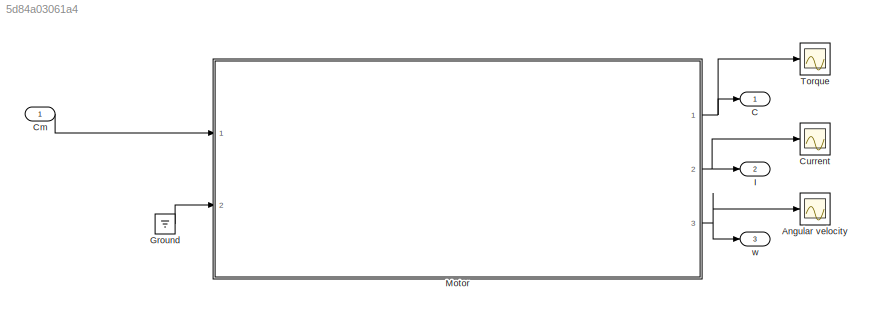
MODEL slx_5d84a03061a4
KIND model
CONFIG AbsTol = auto
CONFIG EnableMultiTasking = off
CONFIG FixedStep = Ts
CONFIG MaxStep = auto
CONFIG MinStep = auto
CONFIG RelTol = 1e-3
CONFIG SampleTimeConstraint = Unconstrained
CONFIG Solver = FixedStepAuto
CONFIG SolverName = FixedStepAuto
CONFIG StartTime = 0.0
CONFIG StopTime = 8
BLOCK [Scope] Angular velocity
  Floating = off
  NumInputPorts = 1
  Ports = [1]
  ScopeSpecificationString = Simulink.scopes.TimeScopeBlockCfg('CurrentConfiguration', extmgr.ConfigurationSet(extmgr.Configuration('Core','General UI',true),extmgr.Configuration('Core','Source UI',true),extmgr.Configuration('Sources','WiredSimulink',true,'DataLoggingVariableName','ScopeData2'),extmgr.Configuration('Visuals','Time Domain',true,'SerializedDisplays',{struct('MinYLimReal','-1.00000','MaxYLimReal','1.00000','YLab...<+1367ch>
BLOCK [Outport] C
  IconDisplay = Port number
BLOCK [Inport] Cm
  IconDisplay = Port number
BLOCK [Scope] Current
  Floating = off
  NumInputPorts = 1
  Ports = [1]
  ScopeSpecificationString = Simulink.scopes.TimeScopeBlockCfg('CurrentConfiguration', extmgr.ConfigurationSet(extmgr.Configuration('Core','General UI',true),extmgr.Configuration('Core','Source UI',true),extmgr.Configuration('Sources','WiredSimulink',true,'DataLoggingVariableName','ScopeData1'),extmgr.Configuration('Visuals','Time Domain',true,'SerializedDisplays',{struct('MinYLimReal','277.25','MaxYLimReal','314.75','YLabelR...<+1385ch>
BLOCK [Ground] Ground
BLOCK [Outport] I
  IconDisplay = Port number
  Port = 2
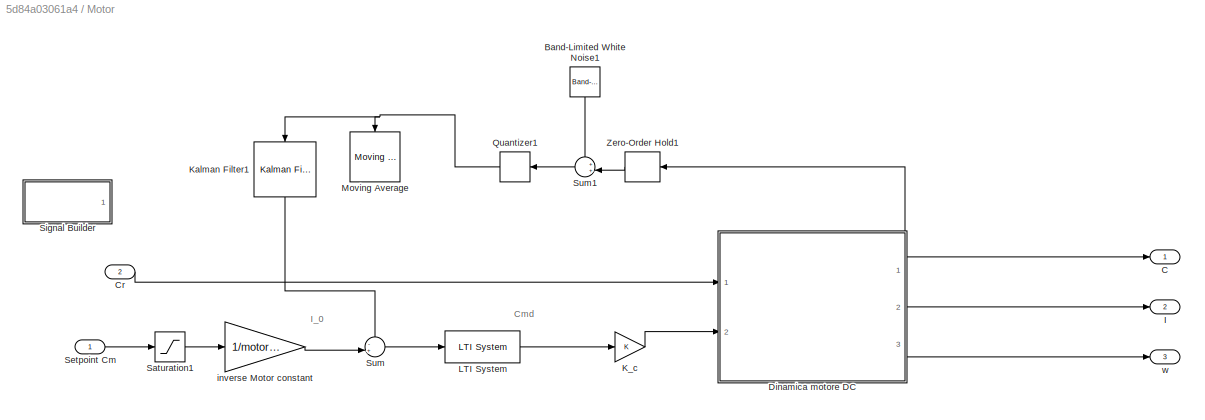
BLOCK [SubSystem] Motor 
  Ports = [2, 3]
  RequestExecContextInheritance = off
BLOCK [Reference] Motor /Band-Limited White Noise1  REF=simulink/Sources/Band-Limited
White Noise
  Ports = [0, 1]
  SourceBlock = simulink/Sources/Band-Limited\nWhite Noise
  SourceProductBaseCode = SL
  SourceProductName = Simulink
  SourceType = Band-Limited White Noise.
BLOCK [Outport] Motor /C 
  IconDisplay = Port number
BLOCK [Inport] Motor /Cr
  IconDisplay = Port number
  Port = 2
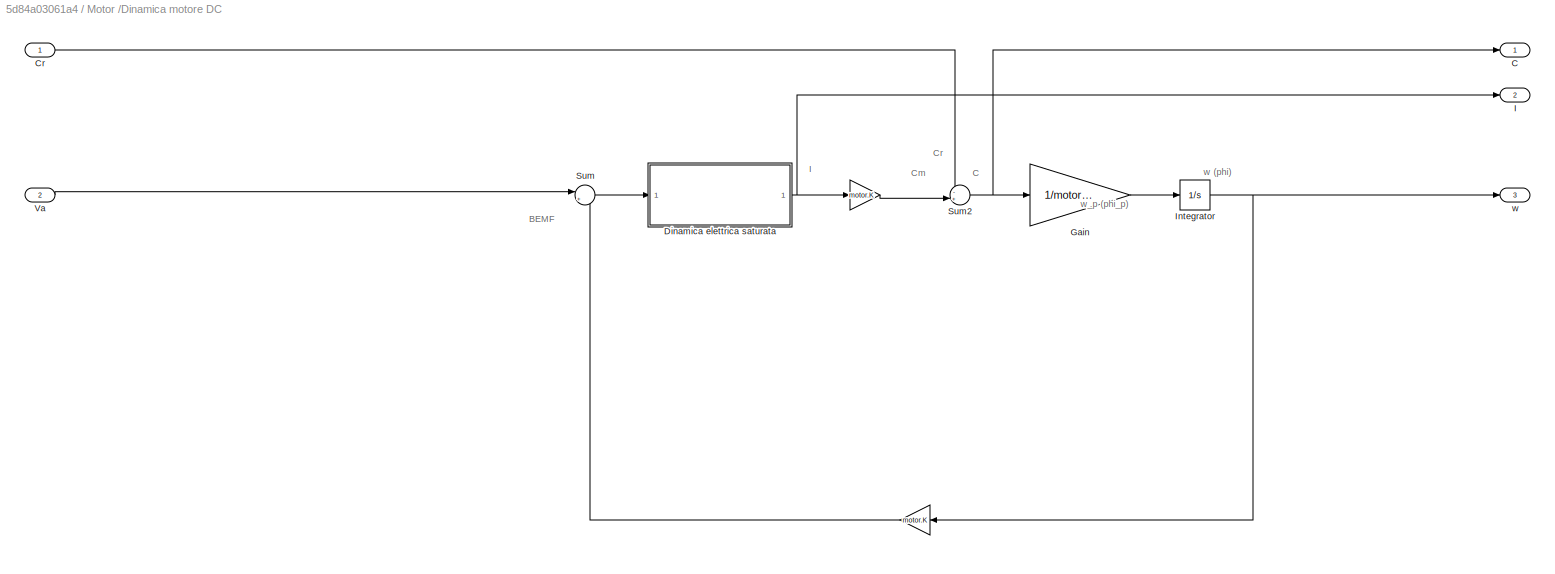
BLOCK [SubSystem] Motor /Dinamica motore DC
  Ports = [2, 3]
  RequestExecContextInheritance = off
BLOCK [Gain] Motor /Dinamica motore DC/ 
  Gain = motor.K
  OutDataTypeStr = Inherit: Inherit via internal rule
  ParamDataTypeStr = Inherit: Inherit via internal rule
  SaturateOnIntegerOverflow = off
BLOCK [Outport] Motor /Dinamica motore DC/C
  IconDisplay = Port number
BLOCK [Inport] Motor /Dinamica motore DC/Cr
  IconDisplay = Port number
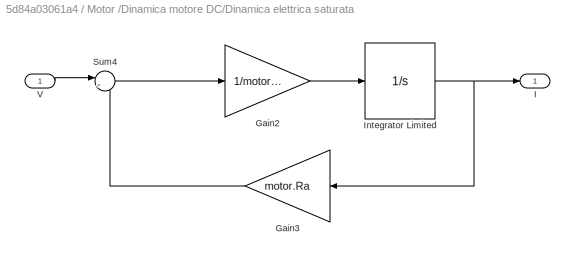
BLOCK [SubSystem] Motor /Dinamica motore DC/Dinamica elettrica saturata 
  Ports = [1, 1]
  RequestExecContextInheritance = off
BLOCK [Gain] Motor /Dinamica motore DC/Dinamica elettrica saturata /Gain2
  Gain = 1/motor.La
  OutDataTypeStr = Inherit: Inherit via internal rule
  ParamDataTypeStr = Inherit: Inherit via internal rule
  SaturateOnIntegerOverflow = off
BLOCK [Gain] Motor /Dinamica motore DC/Dinamica elettrica saturata /Gain3
  Gain = motor.Ra
  OutDataTypeStr = Inherit: Inherit via internal rule
  ParamDataTypeStr = Inherit: Inherit via internal rule
  SaturateOnIntegerOverflow = off
BLOCK [Outport] Motor /Dinamica motore DC/Dinamica elettrica saturata /I
  IconDisplay = Port number
BLOCK [Integrator] Motor /Dinamica motore DC/Dinamica elettrica saturata /Integrator Limited
  LimitOutput = on
  LowerSaturationLimit = -motor.Imax
  Ports = [1, 1]
  UpperSaturationLimit = motor.Imax
BLOCK [Sum] Motor /Dinamica motore DC/Dinamica elettrica saturata /Sum4
  IconShape = round
  InputSameDT = off
  Inputs = |+-
  OutDataTypeStr = Inherit: Inherit via internal rule
  Ports = [2, 1]
  SaturateOnIntegerOverflow = off
BLOCK [Inport] Motor /Dinamica motore DC/Dinamica elettrica saturata /V
  IconDisplay = Port number
BLOCK [Gain] Motor /Dinamica motore DC/Gain
  Gain = 1/motor.J_m_star
  OutDataTypeStr = Inherit: Inherit via internal rule
  ParamDataTypeStr = Inherit: Inherit via internal rule
  SaturateOnIntegerOverflow = off
BLOCK [Outport] Motor /Dinamica motore DC/I
  IconDisplay = Port number
  Port = 2
BLOCK [Integrator] Motor /Dinamica motore DC/Integrator
  Ports = [1, 1]
BLOCK [Sum] Motor /Dinamica motore DC/Sum
  IconShape = round
  InputSameDT = off
  Inputs = |+-
  OutDataTypeStr = Inherit: Inherit via internal rule
  Ports = [2, 1]
  SaturateOnIntegerOverflow = off
BLOCK [Sum] Motor /Dinamica motore DC/Sum2
  IconShape = round
  InputSameDT = off
  Inputs = -+|
  OutDataTypeStr = Inherit: Inherit via internal rule
  Ports = [2, 1]
  SaturateOnIntegerOverflow = off
BLOCK [Inport] Motor /Dinamica motore DC/Va
  IconDisplay = Port number
  Port = 2
BLOCK [Outport] Motor /Dinamica motore DC/w
  IconDisplay = Port number
  Port = 3
BLOCK [Outport] Motor /I 
  IconDisplay = Port number
  Port = 2
BLOCK [Gain] Motor /K_c
  OutDataTypeStr = Inherit: Inherit via internal rule
  ParamDataTypeStr = Inherit: Inherit via internal rule
  SaturateOnIntegerOverflow = off
BLOCK [Reference] Motor /Kalman Filter1  REF=ctrlSharedLib/Kalman Filter
  Ports = [1, 1]
  SourceBlock = ctrlSharedLib/Kalman Filter
  SourceProductBaseCode = CT
  SourceProductName = Control System Toolbox
  SourceType = ctrlKalmanFilter
BLOCK [Reference] Motor /LTI System  REF=cstblocks/LTI System
  Ports = [1, 1]
  SourceBlock = cstblocks/LTI System
  SourceProductBaseCode = CT
  SourceProductName = Control System Toolbox
  SourceType = LTI Block
BLOCK [Reference] Motor /Moving Average  REF=dspstat3/Moving
Average
  Ports = [1, 1]
  SourceBlock = dspstat3/Moving\nAverage
  SourceProductBaseCode = DS
  SourceProductName = DSP System Toolbox
  SourceType = dsp.simulink.MovingAverage
BLOCK [Quantizer] Motor /Quantizer1
  QuantizationInterval = 1/sensitivity_arduino
BLOCK [Saturate] Motor /Saturation1
  InputPortMap = u0
  LowerLimit = -motor.Cmax
  Ports = [1, 1]
  UpperLimit = motor.Cmax
BLOCK [Inport] Motor /Setpoint Cm
  IconDisplay = Port number
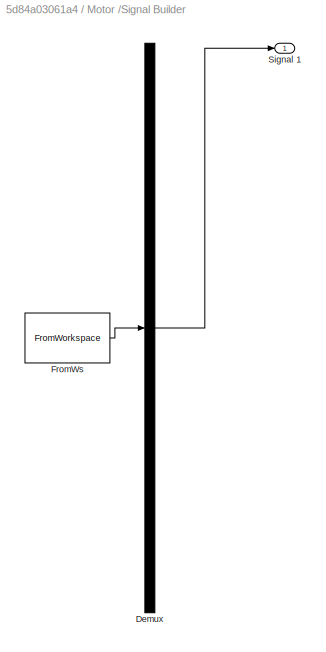
BLOCK [SubSystem] Motor /Signal Builder
  ClipboardFcn = sigbuilder_block('clipboard');
  CloseFcn = sigbuilder_block('close');
  Commented = on
  ContinueFcn = sigbuilder_block('continue');
  CopyFcn = sigbuilder_block('copy');
  DeleteFcn = sigbuilder_block('delete');
  LoadFcn = sigbuilder_block('load');
  MaskHideContents = on
  ModelCloseFcn = sigbuilder_block('modelClose');
  NameChangeFcn = sigbuilder_block('namechange');
  OpenFcn = sigbuilder_block('open',[440.25 156.75 544.5 355.5 ]);
  PauseFcn = sigbuilder_block('pause');
  Ports = [0, 1]
  PreSaveFcn = sigbuilder_block('preSave');
  RequestExecContextInheritance = off
  StartFcn = sigbuilder_block('start');
  StopFcn = sigbuilder_block('stop');
  Tag = STV Subsys
BLOCK [Demux] Motor /Signal Builder/Demux
  Outputs = 1
  Ports = [1, 1]
  Tag = STV Demux
BLOCK [FromWorkspace] Motor /Signal Builder/FromWs
  SampleTime = 0
  Tag = STV FromWs
  VariableName = tuvar
  ZeroCross = on
BLOCK [Outport] Motor /Signal Builder/Signal 1
  IconDisplay = Port number
  Tag = STV Outport
BLOCK [Sum] Motor /Sum
  IconShape = round
  InputSameDT = off
  Inputs = -+|
  OutDataTypeStr = Inherit: Inherit via internal rule
  Ports = [2, 1]
  SaturateOnIntegerOverflow = off
BLOCK [Sum] Motor /Sum1
  IconShape = round
  InputSameDT = off
  Inputs = ++|
  OutDataTypeStr = Inherit: Inherit via internal rule
  Ports = [2, 1]
  SaturateOnIntegerOverflow = off
BLOCK [ZeroOrderHold] Motor /Zero-Order Hold1
  SampleTime = Ts
BLOCK [Gain] Motor /inverse Motor constant
  Gain = 1/motor.K
  OutDataTypeStr = Inherit: Inherit via internal rule
  ParamDataTypeStr = Inherit: Inherit via internal rule
  SaturateOnIntegerOverflow = off
BLOCK [Outport] Motor /w
  IconDisplay = Port number
  Port = 3
BLOCK [Scope] Torque
  Floating = off
  NumInputPorts = 1
  Ports = [1]
  ScopeSpecificationString = Simulink.scopes.TimeScopeBlockCfg('CurrentConfiguration', extmgr.ConfigurationSet(extmgr.Configuration('Core','General UI',true),extmgr.Configuration('Core','Source UI',true),extmgr.Configuration('Sources','WiredSimulink',true),extmgr.Configuration('Visuals','Time Domain',true,'SerializedDisplays',{struct('MinYLimReal','-0.25','MaxYLimReal','2.25','YLabelReal','','MinYLimMag','0.00000','MaxYLimMag...<+1331ch>
BLOCK [Outport] w
  IconDisplay = Port number
  Port = 3
ANNOTATION Motor : Cmd
ANNOTATION Motor : I_0
ANNOTATION Motor /Dinamica motore DC: BEMF
ANNOTATION Motor /Dinamica motore DC: C
ANNOTATION Motor /Dinamica motore DC: Cm
ANNOTATION Motor /Dinamica motore DC: Cr
ANNOTATION Motor /Dinamica motore DC: I
ANNOTATION Motor /Dinamica motore DC: w (phi)
ANNOTATION Motor /Dinamica motore DC: w_p (phi_p)
LINE Cm:1 -> Motor :1
LINE Ground:1 -> Motor :2
LINE Motor /Band-Limited White Noise1:1 -> Motor /Sum1:1
LINE Motor /Cr:1 -> Motor /Dinamica motore DC:1
NET Motor /Dinamica motore DC/ :1 -> Motor /Dinamica motore DC/Sum2:2, Motor /Dinamica motore DC/Sum:2
LINE Motor /Dinamica motore DC/Cr:1 -> Motor /Dinamica motore DC/Sum2:1
LINE Motor /Dinamica motore DC/Dinamica elettrica saturata /Gain2:1 -> Motor /Dinamica motore DC/Dinamica elettrica saturata /Integrator Limited:1
LINE Motor /Dinamica motore DC/Dinamica elettrica saturata /Gain3:1 -> Motor /Dinamica motore DC/Dinamica elettrica saturata /Sum4:2
NET Motor /Dinamica motore DC/Dinamica elettrica saturata /Integrator Limited:1 -> Motor /Dinamica motore DC/Dinamica elettrica saturata /Gain3:1, Motor /Dinamica motore DC/Dinamica elettrica saturata /I:1
LINE Motor /Dinamica motore DC/Dinamica elettrica saturata /Sum4:1 -> Motor /Dinamica motore DC/Dinamica elettrica saturata /Gain2:1
LINE Motor /Dinamica motore DC/Dinamica elettrica saturata /V:1 -> Motor /Dinamica motore DC/Dinamica elettrica saturata /Sum4:1
NET Motor /Dinamica motore DC/Dinamica elettrica saturata :1 -> Motor /Dinamica motore DC/ :1, Motor /Dinamica motore DC/I:1
LINE Motor /Dinamica motore DC/Gain:1 -> Motor /Dinamica motore DC/Integrator:1
NET Motor /Dinamica motore DC/Integrator:1 -> Motor /Dinamica motore DC/ :1, Motor /Dinamica motore DC/w:1
NET Motor /Dinamica motore DC/Sum2:1 -> Motor /Dinamica motore DC/C:1, Motor /Dinamica motore DC/Gain:1
LINE Motor /Dinamica motore DC/Sum:1 -> Motor /Dinamica motore DC/Dinamica elettrica saturata :1
LINE Motor /Dinamica motore DC/Va:1 -> Motor /Dinamica motore DC/Sum:1
LINE Motor /Dinamica motore DC:1 -> Motor /C :1
NET Motor /Dinamica motore DC:2 -> Motor /I :1, Motor /Zero-Order Hold1:1
LINE Motor /Dinamica motore DC:3 -> Motor /w:1
LINE Motor /K_c:1 -> Motor /Dinamica motore DC:2
LINE Motor /Kalman Filter1:1 -> Motor /Sum:1
LINE Motor /LTI System:1 -> Motor /K_c:1
NET Motor /Quantizer1:1 -> Motor /Kalman Filter1:1, Motor /Moving Average:1
LINE Motor /Saturation1:1 -> Motor /inverse Motor constant:1
LINE Motor /Setpoint Cm:1 -> Motor /Saturation1:1
LINE Motor /Sum1:1 -> Motor /Quantizer1:1
LINE Motor /Sum:1 -> Motor /LTI System:1
LINE Motor /Zero-Order Hold1:1 -> Motor /Sum1:2
LINE Motor /inverse Motor constant:1 -> Motor /Sum:2
NET Motor :1 -> C:1, Torque:1
NET Motor :2 -> Current:1, I:1
NET Motor :3 -> Angular velocity:1, w:1
note: NET lines group one-source signal fan-out (src -> all destinations, sorted); 1:1 wires keep LINE
